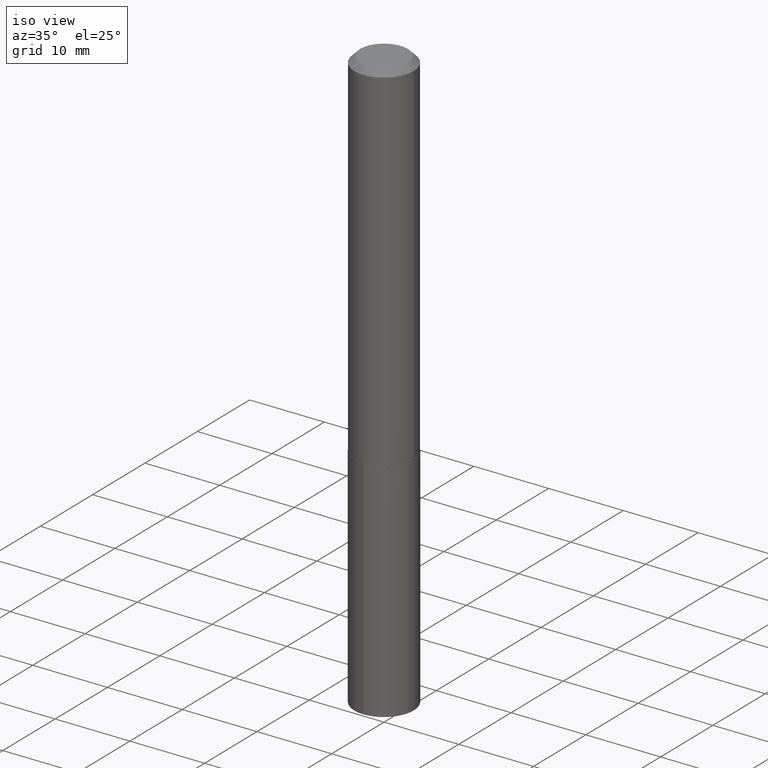
[diagram: clean part render]
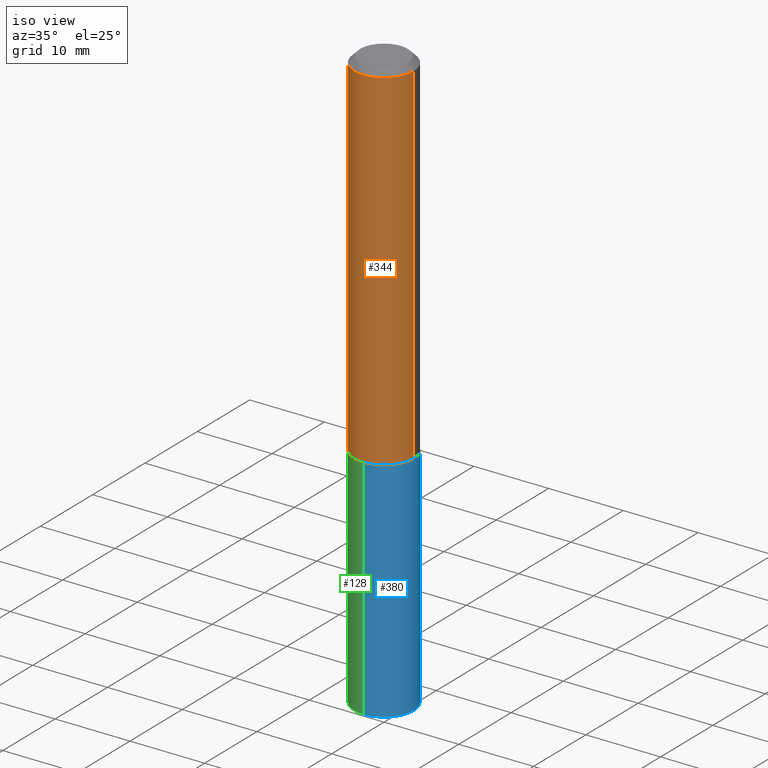
[diagram: same view with three faces highlighted in distinct colors, each labeled with its STEP entity id]
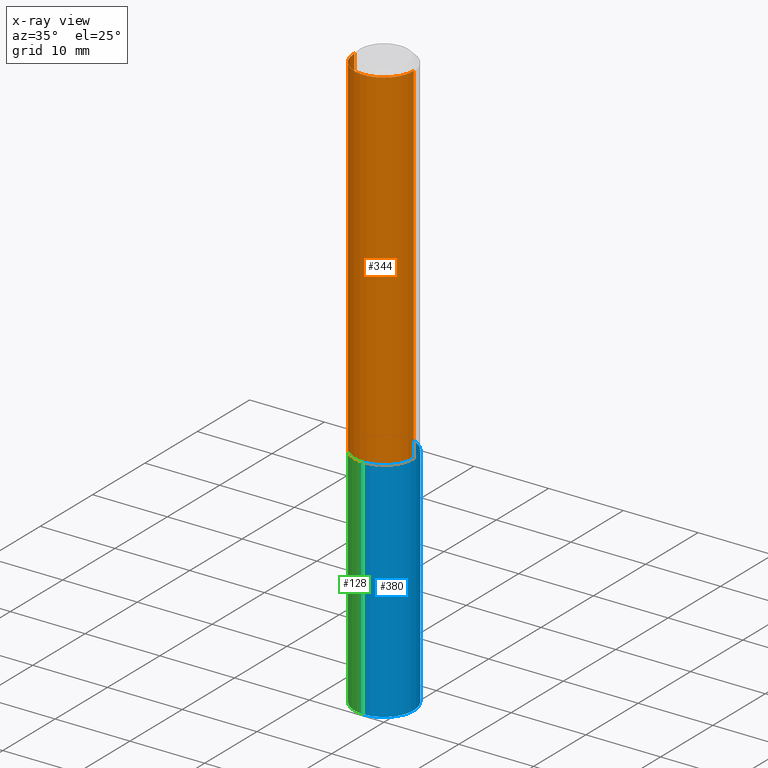
[diagram: x-ray of the same camera — body ghosted, the three highlighted faces saturated]
A machine part, iso view with three faces highlighted in distinct colors.
The next image is the same camera in x-ray (body ghosted, the three faces saturated) — at least one of them is partly hidden behind the body in this view.
Their STEP definitions:

[orange] entity #344 — the highlighted cylindrical surface (edge-blend (fillet) strip) has radius 3.9688 mm, axis along (-0, 0, 1).
#9 = EDGE_CURVE ( 'NONE', #51, #116, #178, .T. ) ;
#14 = VECTOR ( 'NONE', #381, 39.37007874015748143 ) ;
#16 = LINE ( 'NONE', #236, #14 ) ;
#18 = DIRECTION ( 'NONE',  ( -2.445468806185136597E-29, 3.491481338843145583E-15, 1.000000000000000000 ) ) ;
#19 = ORIENTED_EDGE ( 'NONE', *, *, #58, .T. ) ;
#24 = CIRCLE ( 'NONE', #79, 0.1562500000000002776 ) ;
#49 = ORIENTED_EDGE ( 'NONE', *, *, #213, .F. ) ;
#51 = VERTEX_POINT ( 'NONE', #91 ) ;
#58 = EDGE_CURVE ( 'NONE', #384, #51, #24, .T. ) ;
#79 = AXIS2_PLACEMENT_3D ( 'NONE', #315, #283, #348 ) ;
#91 = CARTESIAN_POINT ( 'NONE',  ( 0.1562500000000002776, -7.637615428719380247E-15, -1.875000000000000000 ) ) ;
#116 = VERTEX_POINT ( 'NONE', #138 ) ;
#131 = ORIENTED_EDGE ( 'NONE', *, *, #9, .T. ) ;
#138 = CARTESIAN_POINT ( 'NONE',  ( 0.1562500000000000000, -1.200196710227328077E-15, -0.03125000000000021511 ) ) ;
#144 = EDGE_LOOP ( 'NONE', ( #49, #19, #131, #167 ) ) ;
#147 = CARTESIAN_POINT ( 'NONE',  ( -0.1562500000000002776, -5.436304485705739800E-15, -1.875000000000000000 ) ) ;
#167 = ORIENTED_EDGE ( 'NONE', *, *, #207, .F. ) ;
#178 = LINE ( 'NONE', #331, #310 ) ;
#179 = DIRECTION ( 'NONE',  ( -2.445468806185136597E-29, 3.491481338843145583E-15, 1.000000000000000000 ) ) ;
#181 = FACE_OUTER_BOUND ( 'NONE', #144, .T. ) ;
#188 = AXIS2_PLACEMENT_3D ( 'NONE', #370, #18, #288 ) ;
#207 = EDGE_CURVE ( 'NONE', #240, #116, #360, .T. ) ;
#213 = EDGE_CURVE ( 'NONE', #384, #240, #16, .T. ) ;
#236 = CARTESIAN_POINT ( 'NONE',  ( -0.1562500000000001388, 1.110223024625157526E-15, -7.685836078523296765E-30 ) ) ;
#240 = VERTEX_POINT ( 'NONE', #258 ) ;
#258 = CARTESIAN_POINT ( 'NONE',  ( -0.1562500000000000000, -2.217595126459715391E-15, -0.03125000000000021511 ) ) ;
#283 = DIRECTION ( 'NONE',  ( -2.445468806185136597E-29, 3.491481338843145583E-15, 1.000000000000000000 ) ) ;
#288 = DIRECTION ( 'NONE',  ( 1.000000000000000000, -6.982962677686265133E-15, 0.000000000000000000 ) ) ;
#297 = DIRECTION ( 'NONE',  ( 1.000000000000000000, -6.982962677686266711E-15, 4.876176775795936353E-29 ) ) ;
#298 = CYLINDRICAL_SURFACE ( 'NONE', #340, 0.1562500000000001388 ) ;
#301 = DIRECTION ( 'NONE',  ( -2.445468806185136877E-29, 3.491481338843145188E-15, 1.000000000000000000 ) ) ;
#310 = VECTOR ( 'NONE', #301, 39.37007874015748143 ) ;
#315 = CARTESIAN_POINT ( 'NONE',  ( 4.585254011597131119E-29, -6.546527510330898707E-15, -1.875000000000000000 ) ) ;
#331 = CARTESIAN_POINT ( 'NONE',  ( 0.1562500000000001388, -1.091087918388480160E-15, 7.619026212181157383E-30 ) ) ;
#335 = CARTESIAN_POINT ( 'NONE',  ( 0.000000000000000000, 0.000000000000000000, 0.000000000000000000 ) ) ;
#340 = AXIS2_PLACEMENT_3D ( 'NONE', #335, #179, #297 ) ;
#344 = ADVANCED_FACE ( 'NONE', ( #181 ), #298, .T. ) ;
#348 = DIRECTION ( 'NONE',  ( 1.000000000000000000, -6.982962677686269077E-15, 0.000000000000000000 ) ) ;
#360 = CIRCLE ( 'NONE', #188, 0.1562500000000000000 ) ;
#370 = CARTESIAN_POINT ( 'NONE',  ( 7.642090019328604414E-31, -1.091087918388490513E-16, -0.03125000000000021511 ) ) ;
#381 = DIRECTION ( 'NONE',  ( -2.445468806185136877E-29, 3.491481338843145188E-15, 1.000000000000000000 ) ) ;
#384 = VERTEX_POINT ( 'NONE', #147 ) ;

[blue] entity #380 — the highlighted cylindrical surface (edge-blend (fillet) strip) has radius 3.9688 mm, axis along (-0, 0, 1).
#1 = EDGE_CURVE ( 'NONE', #227, #139, #93, .T. ) ;
#4 = VECTOR ( 'NONE', #113, 39.37007874015748143 ) ;
#12 = LINE ( 'NONE', #224, #275 ) ;
#17 = ORIENTED_EDGE ( 'NONE', *, *, #1, .F. ) ;
#35 = CIRCLE ( 'NONE', #72, 0.1562500000000000000 ) ;
#40 = AXIS2_PLACEMENT_3D ( 'NONE', #355, #272, #390 ) ;
#42 = ORIENTED_EDGE ( 'NONE', *, *, #132, .F. ) ;
#48 = DIRECTION ( 'NONE',  ( -2.445440462461953620E-29, 3.491521928667968555E-15, 1.000000000000000000 ) ) ;
#54 = CARTESIAN_POINT ( 'NONE',  ( 7.521578913832387717E-29, -1.073891855158135140E-14, -3.075734564237659896 ) ) ;
#56 = DIRECTION ( 'NONE',  ( -6.982962677686265133E-15, -1.000000000000000000, 3.496765431890256920E-15 ) ) ;
#72 = AXIS2_PLACEMENT_3D ( 'NONE', #54, #242, #119 ) ;
#77 = CARTESIAN_POINT ( 'NONE',  ( 1.110223024625232074E-15, 0.1562499999999893141, -3.075734564237660340 ) ) ;
#93 = CIRCLE ( 'NONE', #182, 0.1562500000000000000 ) ;
#109 = LINE ( 'NONE', #285, #4 ) ;
#110 = EDGE_LOOP ( 'NONE', ( #356, #286, #17, #42 ) ) ;
#113 = DIRECTION ( 'NONE',  ( -2.445440462461953620E-29, 3.491521928667968555E-15, 1.000000000000000000 ) ) ;
#119 = DIRECTION ( 'NONE',  ( -6.982962677686265133E-15, -1.000000000000000000, 3.496765431890256920E-15 ) ) ;
#132 = EDGE_CURVE ( 'NONE', #309, #227, #109, .T. ) ;
#139 = VERTEX_POINT ( 'NONE', #350 ) ;
#141 = VERTEX_POINT ( 'NONE', #77 ) ;
#171 = EDGE_CURVE ( 'NONE', #141, #139, #12, .T. ) ;
#177 = CYLINDRICAL_SURFACE ( 'NONE', #40, 0.1562500000000000000 ) ;
#182 = AXIS2_PLACEMENT_3D ( 'NONE', #208, #326, #56 ) ;
#208 = CARTESIAN_POINT ( 'NONE',  ( 4.586476746000223920E-29, -6.548273251000319422E-15, -1.875499999999999945 ) ) ;
#224 = CARTESIAN_POINT ( 'NONE',  ( 1.110223024625202294E-15, 0.1562499999999934497, -1.875500000000000611 ) ) ;
#227 = VERTEX_POINT ( 'NONE', #343 ) ;
#239 = FACE_OUTER_BOUND ( 'NONE', #110, .T. ) ;
#242 = DIRECTION ( 'NONE',  ( -2.445440462461953340E-29, 3.491521928667968555E-15, 1.000000000000000000 ) ) ;
#267 = CARTESIAN_POINT ( 'NONE',  ( -1.091087918388404035E-15, -0.1562500000000107692, -3.075734564237659452 ) ) ;
#272 = DIRECTION ( 'NONE',  ( -2.445440462461953340E-29, 3.491521928667968555E-15, 1.000000000000000000 ) ) ;
#275 = VECTOR ( 'NONE', #48, 39.37007874015748143 ) ;
#285 = CARTESIAN_POINT ( 'NONE',  ( -1.091087918388433222E-15, -0.1562500000000065503, -1.875499999999999501 ) ) ;
#286 = ORIENTED_EDGE ( 'NONE', *, *, #171, .T. ) ;
#294 = EDGE_CURVE ( 'NONE', #309, #141, #35, .T. ) ;
#309 = VERTEX_POINT ( 'NONE', #267 ) ;
#326 = DIRECTION ( 'NONE',  ( -2.445440462461953340E-29, 3.491521928667968555E-15, 1.000000000000000000 ) ) ;
#343 = CARTESIAN_POINT ( 'NONE',  ( -1.091087918388433222E-15, -0.1562500000000065503, -1.875499999999999501 ) ) ;
#350 = CARTESIAN_POINT ( 'NONE',  ( 1.110223024625231482E-15, 0.1562499999999934497, -1.875500000000000611 ) ) ;
#355 = CARTESIAN_POINT ( 'NONE',  ( 4.586476746000223920E-29, -6.548273251000319422E-15, -1.875499999999999945 ) ) ;
#356 = ORIENTED_EDGE ( 'NONE', *, *, #294, .T. ) ;
#380 = ADVANCED_FACE ( 'NONE', ( #239 ), #177, .T. ) ;
#390 = DIRECTION ( 'NONE',  ( -6.982962677686265133E-15, -1.000000000000000000, 3.496765431890256920E-15 ) ) ;

[green] entity #128 — the highlighted cylindrical surface (edge-blend (fillet) strip) has radius 3.9688 mm, axis along (-0, 0, 1).
#4 = VECTOR ( 'NONE', #113, 39.37007874015748143 ) ;
#12 = LINE ( 'NONE', #224, #275 ) ;
#33 = DIRECTION ( 'NONE',  ( -6.982962677686265133E-15, -1.000000000000000000, 3.496765431890256920E-15 ) ) ;
#48 = DIRECTION ( 'NONE',  ( -2.445440462461953620E-29, 3.491521928667968555E-15, 1.000000000000000000 ) ) ;
#75 = CARTESIAN_POINT ( 'NONE',  ( 7.521578913832387717E-29, -1.073891855158135140E-14, -3.075734564237659896 ) ) ;
#77 = CARTESIAN_POINT ( 'NONE',  ( 1.110223024625232074E-15, 0.1562499999999893141, -3.075734564237660340 ) ) ;
#82 = EDGE_CURVE ( 'NONE', #141, #309, #366, .T. ) ;
#90 = DIRECTION ( 'NONE',  ( -2.445440462461953340E-29, 3.491521928667968555E-15, 1.000000000000000000 ) ) ;
#106 = FACE_OUTER_BOUND ( 'NONE', #232, .T. ) ;
#109 = LINE ( 'NONE', #285, #4 ) ;
#111 = DIRECTION ( 'NONE',  ( -2.445440462461953340E-29, 3.491521928667968555E-15, 1.000000000000000000 ) ) ;
#113 = DIRECTION ( 'NONE',  ( -2.445440462461953620E-29, 3.491521928667968555E-15, 1.000000000000000000 ) ) ;
#128 = ADVANCED_FACE ( 'NONE', ( #106 ), #234, .T. ) ;
#132 = EDGE_CURVE ( 'NONE', #309, #227, #109, .T. ) ;
#134 = CARTESIAN_POINT ( 'NONE',  ( 4.586476746000223920E-29, -6.548273251000319422E-15, -1.875499999999999945 ) ) ;
#139 = VERTEX_POINT ( 'NONE', #350 ) ;
#141 = VERTEX_POINT ( 'NONE', #77 ) ;
#163 = DIRECTION ( 'NONE',  ( -6.982962677686265133E-15, -1.000000000000000000, 3.496765431890256920E-15 ) ) ;
#171 = EDGE_CURVE ( 'NONE', #141, #139, #12, .T. ) ;
#176 = AXIS2_PLACEMENT_3D ( 'NONE', #75, #111, #312 ) ;
#218 = CARTESIAN_POINT ( 'NONE',  ( 4.586476746000223920E-29, -6.548273251000319422E-15, -1.875499999999999945 ) ) ;
#224 = CARTESIAN_POINT ( 'NONE',  ( 1.110223024625202294E-15, 0.1562499999999934497, -1.875500000000000611 ) ) ;
#227 = VERTEX_POINT ( 'NONE', #343 ) ;
#232 = EDGE_LOOP ( 'NONE', ( #379, #284, #262, #293 ) ) ;
#234 = CYLINDRICAL_SURFACE ( 'NONE', #339, 0.1562500000000000000 ) ;
#262 = ORIENTED_EDGE ( 'NONE', *, *, #132, .T. ) ;
#267 = CARTESIAN_POINT ( 'NONE',  ( -1.091087918388404035E-15, -0.1562500000000107692, -3.075734564237659452 ) ) ;
#275 = VECTOR ( 'NONE', #48, 39.37007874015748143 ) ;
#277 = AXIS2_PLACEMENT_3D ( 'NONE', #218, #90, #33 ) ;
#284 = ORIENTED_EDGE ( 'NONE', *, *, #82, .T. ) ;
#285 = CARTESIAN_POINT ( 'NONE',  ( -1.091087918388433222E-15, -0.1562500000000065503, -1.875499999999999501 ) ) ;
#290 = CIRCLE ( 'NONE', #277, 0.1562500000000000000 ) ;
#293 = ORIENTED_EDGE ( 'NONE', *, *, #338, .F. ) ;
#309 = VERTEX_POINT ( 'NONE', #267 ) ;
#312 = DIRECTION ( 'NONE',  ( -6.982962677686265133E-15, -1.000000000000000000, 3.496765431890256920E-15 ) ) ;
#338 = EDGE_CURVE ( 'NONE', #139, #227, #290, .T. ) ;
#339 = AXIS2_PLACEMENT_3D ( 'NONE', #134, #372, #163 ) ;
#343 = CARTESIAN_POINT ( 'NONE',  ( -1.091087918388433222E-15, -0.1562500000000065503, -1.875499999999999501 ) ) ;
#350 = CARTESIAN_POINT ( 'NONE',  ( 1.110223024625231482E-15, 0.1562499999999934497, -1.875500000000000611 ) ) ;
#366 = CIRCLE ( 'NONE', #176, 0.1562500000000000000 ) ;
#372 = DIRECTION ( 'NONE',  ( -2.445440462461953340E-29, 3.491521928667968555E-15, 1.000000000000000000 ) ) ;
#379 = ORIENTED_EDGE ( 'NONE', *, *, #171, .F. ) ;